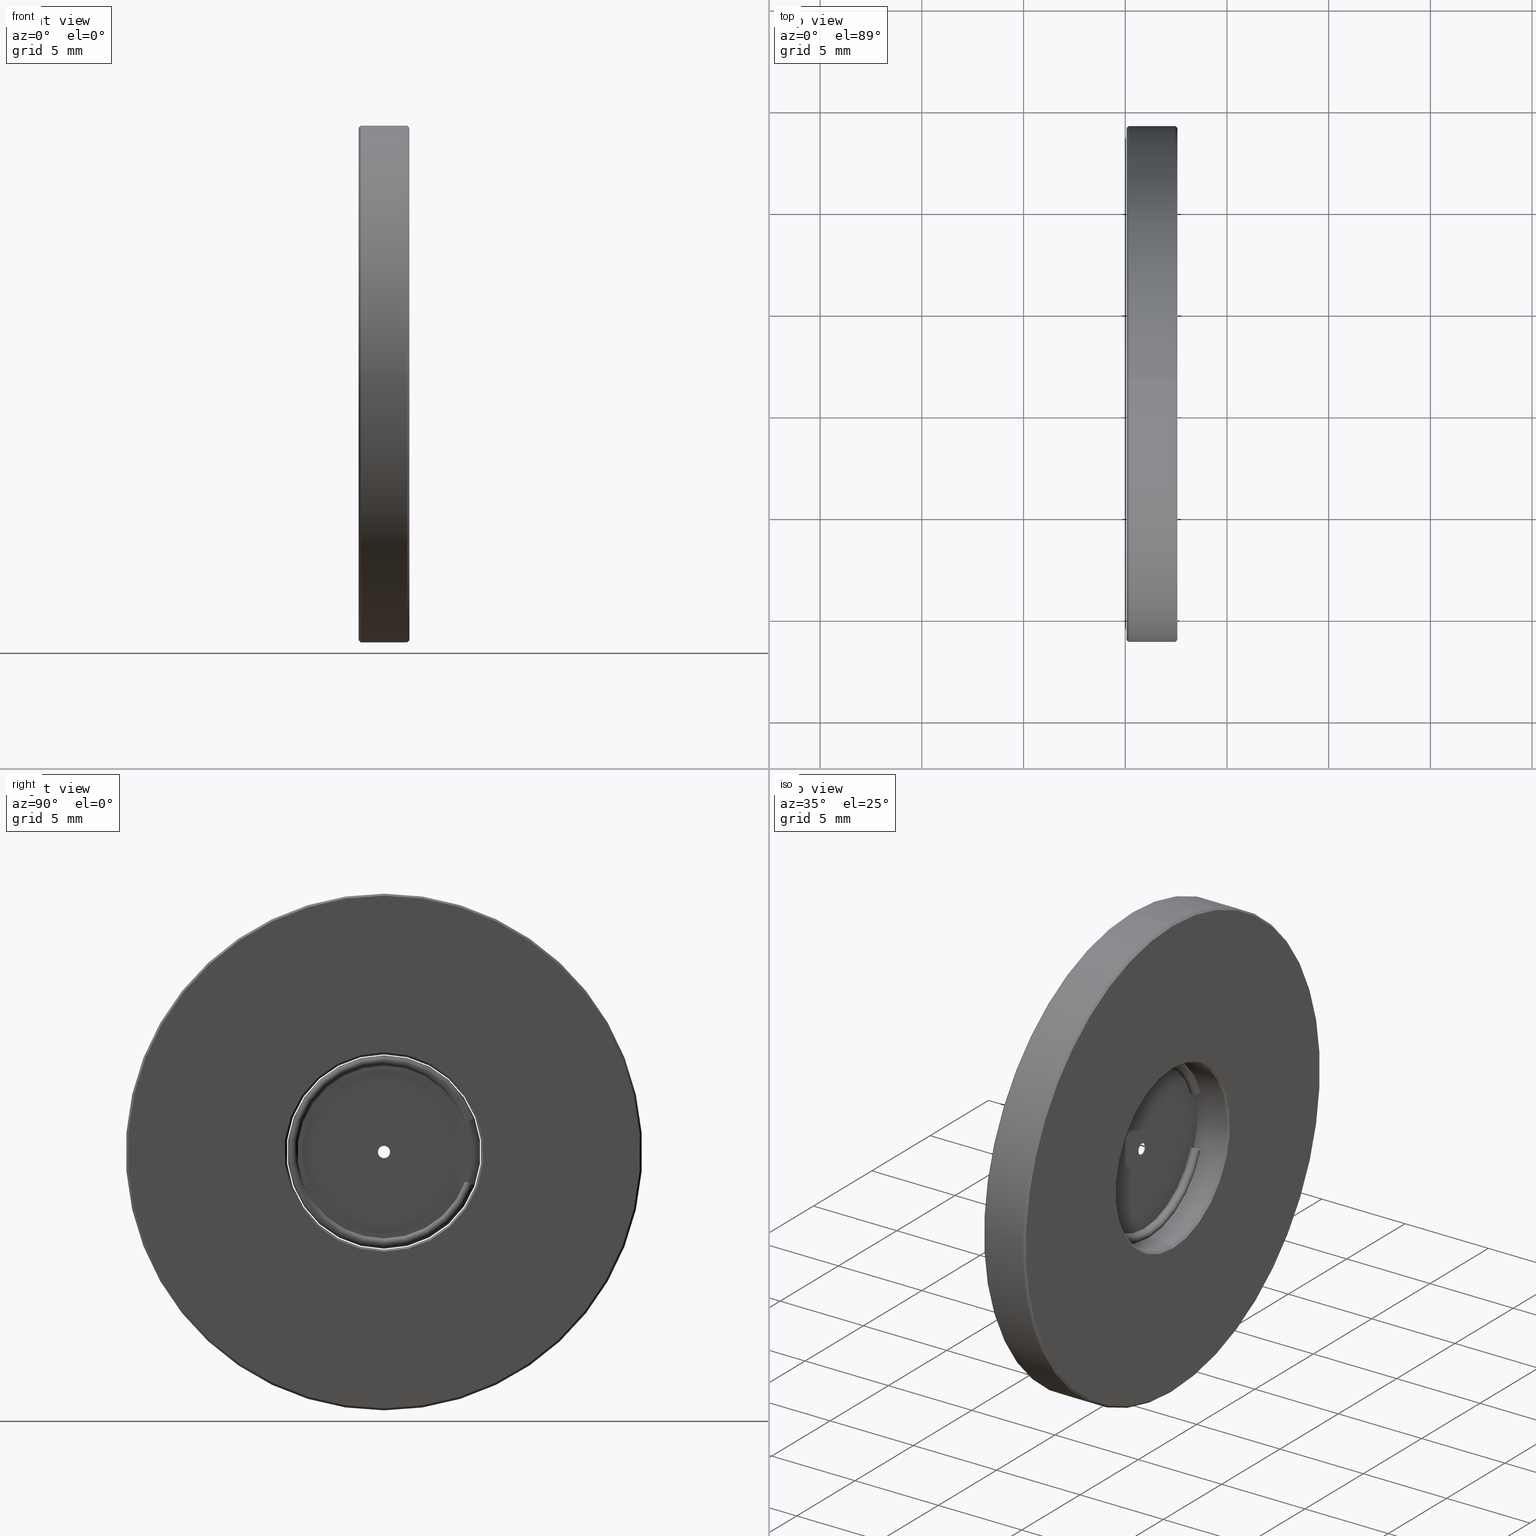
[diagram: canonical four-view strip — front | top / right | iso, engineering-drawing reading convention]
A machine part, canonical four-view strip (front | top / right | iso — engineering-drawing reading convention). The complete STEP part file that produces these views, byte-faithful:
ISO-10303-21;
HEADER;
FILE_DESCRIPTION (( 'STEP AP203' ),
    '1' );
FILE_NAME ('1.5.3.36_ZXO-1.0-600_�������600um��ֱ��25.4��1.0Ӣ�磩.STEP',
    '2021-07-27T01:09:54',
    ( 'China' ),
    ( 'Home' ),
    'SwSTEP 2.0',
    'SolidWorks 2018',
    '' );
FILE_SCHEMA (( 'CONFIG_CONTROL_DESIGN' ));
ENDSEC;

DATA;
#1 = CIRCLE ( 'NONE', #513, 0.2500000000000002220 ) ;
#2 = VERTEX_POINT ( 'NONE', #586 ) ;
#3 = DIRECTION ( 'NONE',  ( 0.0000000000000000000, 0.0000000000000000000, -1.000000000000000000 ) ) ;
#4 = ORIENTED_EDGE ( 'NONE', *, *, #303, .T. ) ;
#5 = FACE_OUTER_BOUND ( 'NONE', #271, .T. ) ;
#6 = LOCAL_TIME ( 9, 9, 54.00000000000000000, #343 ) ;
#7 = FACE_OUTER_BOUND ( 'NONE', #541, .T. ) ;
#8 = DIRECTION ( 'NONE',  ( 0.0000000000000000000, 0.0000000000000000000, -1.000000000000000000 ) ) ;
#9 = DIRECTION ( 'NONE',  ( 1.000000000000000000, -2.997602166487921476E-15, -1.332267629309052594E-15 ) ) ;
#10 = AXIS2_PLACEMENT_3D ( 'NONE', #670, #535, #403 ) ;
#11 = CARTESIAN_POINT ( 'NONE',  ( -4.034863851253234657, 1.436758840788972647, 20.89999999999998437 ) ) ;
#12 = CARTESIAN_POINT ( 'NONE',  ( -2.434863851253203482, 1.436758841085141070, 38.09999999999999432 ) ) ;
#13 = ORIENTED_EDGE ( 'NONE', *, *, #750, .T. ) ;
#14 = EDGE_LOOP ( 'NONE', ( #737, #369 ) ) ;
#15 = DIRECTION ( 'NONE',  ( 0.0000000000000000000, 0.0000000000000000000, 1.000000000000000000 ) ) ;
#16 = DIRECTION ( 'NONE',  ( 1.000000000000000000, 0.0000000000000000000, 0.0000000000000000000 ) ) ;
#17 = PERSON ( 'δָ��', 'δָ��', 'δָ��', ('δָ��'), ('δָ��'), ('δָ��') ) ;
#18 = CC_DESIGN_PERSON_AND_ORGANIZATION_ASSIGNMENT ( #811, #524, ( #721 ) ) ;
#19 = ADVANCED_FACE ( 'NONE', ( #532 ), #782, .T. ) ;
#20 = DIRECTION ( 'NONE',  ( 0.0000000000000000000, 0.0000000000000000000, 1.000000000000000000 ) ) ;
#21 = CONICAL_SURFACE ( 'NONE', #448, 3.800000000000001155, 0.7853981633974439491 ) ;
#22 = CARTESIAN_POINT ( 'NONE',  ( -4.334863851253203393, 1.436758841085141514, 29.10000000000000142 ) ) ;
#23 = EDGE_CURVE ( 'NONE', #518, #185, #139, .T. ) ;
#24 = FACE_OUTER_BOUND ( 'NONE', #14, .T. ) ;
#25 = ORIENTED_EDGE ( 'NONE', *, *, #84, .F. ) ;
#26 = CARTESIAN_POINT ( 'NONE',  ( -4.284863851253205347, 1.436758841085140181, 25.39999999999999858 ) ) ;
#27 = CARTESIAN_POINT ( 'NONE',  ( -18.51131405003491537, 1.436758841085141070, 25.39999999999999858 ) ) ;
#28 = APPROVAL ( #525, 'δָ��' ) ;
#29 = CARTESIAN_POINT ( 'NONE',  ( -4.284863851253205347, 1.436758841085139515, 20.64999999999999858 ) ) ;
#30 = CONICAL_SURFACE ( 'NONE', #788, 4.899999999999997691, 0.7853981633974439491 ) ;
#31 = ORIENTED_EDGE ( 'NONE', *, *, #157, .F. ) ;
#32 = DIRECTION ( 'NONE',  ( 0.0000000000000000000, 0.0000000000000000000, 1.000000000000000000 ) ) ;
#33 = AXIS2_PLACEMENT_3D ( 'NONE', #216, #729, #96 ) ;
#34 = LOCAL_TIME ( 9, 9, 54.00000000000000000, #585 ) ;
#35 = LINE ( 'NONE', #555, #275 ) ;
#36 = AXIS2_PLACEMENT_3D ( 'NONE', #11, #830, #701 ) ;
#37 = CARTESIAN_POINT ( 'NONE',  ( -2.434863851253203482, 1.436758841085141070, 25.39999999999999858 ) ) ;
#38 = CARTESIAN_POINT ( 'NONE',  ( -4.934863851253203926, 1.436758841085141070, 25.39999999999999858 ) ) ;
#39 = FACE_OUTER_BOUND ( 'NONE', #659, .T. ) ;
#40 = EDGE_CURVE ( 'NONE', #576, #367, #466, .T. ) ;
#41 = AXIS2_PLACEMENT_3D ( 'NONE', #694, #304, #565 ) ;
#42 = VERTEX_POINT ( 'NONE', #732 ) ;
#43 = AXIS2_PLACEMENT_3D ( 'NONE', #432, #245, #364 ) ;
#44 = PERSON_AND_ORGANIZATION ( #17, #509 ) ;
#45 = VERTEX_POINT ( 'NONE', #149 ) ;
#46 = CARTESIAN_POINT ( 'NONE',  ( -4.284863851253205347, 1.436758841085140181, 25.39999999999999858 ) ) ;
#47 = VERTEX_POINT ( 'NONE', #29 ) ;
#48 = CIRCLE ( 'NONE', #581, 4.750000000000000888 ) ;
#49 = DIRECTION ( 'NONE',  ( 1.000000000000000000, -2.997602166487921476E-15, -1.332267629309052594E-15 ) ) ;
#50 = DIRECTION ( 'NONE',  ( 1.000000000000000000, 0.0000000000000000000, 0.0000000000000000000 ) ) ;
#51 = ADVANCED_FACE ( 'NONE', ( #267 ), #738, .F. ) ;
#52 = CARTESIAN_POINT ( 'NONE',  ( -4.934863851253203926, 1.436758841085141070, 12.80000000000000071 ) ) ;
#53 = AXIS2_PLACEMENT_3D ( 'NONE', #270, #16, #794 ) ;
#54 = ADVANCED_FACE ( 'NONE', ( #7 ), #74, .F. ) ;
#55 = CARTESIAN_POINT ( 'NONE',  ( -4.834863851253204281, 1.436758841085141070, 25.39999999999999858 ) ) ;
#56 = CIRCLE ( 'NONE', #534, 4.799999999999998934 ) ;
#57 = ORIENTED_EDGE ( 'NONE', *, *, #269, .F. ) ;
#58 = DIRECTION ( 'NONE',  ( 1.000000000000000000, -0.0000000000000000000, -0.0000000000000000000 ) ) ;
#59 = TOROIDAL_SURFACE ( 'NONE', #160, 4.500000000000001776, 0.2499999999999994726 ) ;
#60 = DIRECTION ( 'NONE',  ( 0.0000000000000000000, 0.0000000000000000000, -1.000000000000000000 ) ) ;
#61 = CARTESIAN_POINT ( 'NONE',  ( -4.334863851253204281, 1.436758841085139515, 20.64999999999999858 ) ) ;
#62 = EDGE_LOOP ( 'NONE', ( #444, #156, #789, #326 ) ) ;
#63 = AXIS2_PLACEMENT_3D ( 'NONE', #640, #134, #771 ) ;
#64 = CARTESIAN_POINT ( 'NONE',  ( -4.934863851253203926, 1.436758841085141070, 25.39999999999999858 ) ) ;
#65 = CARTESIAN_POINT ( 'NONE',  ( -2.434863851253203038, 1.436758841085141070, 20.50000000000000000 ) ) ;
#66 = CARTESIAN_POINT ( 'NONE',  ( -4.034863851253245315, 1.436758841381310825, 29.89999999999998437 ) ) ;
#67 = EDGE_CURVE ( 'NONE', #2, #682, #342, .T. ) ;
#68 = AXIS2_PLACEMENT_3D ( 'NONE', #363, #428, #179 ) ;
#69 = ORIENTED_EDGE ( 'NONE', *, *, #170, .F. ) ;
#70 = CIRCLE ( 'NONE', #464, 3.700000000000001954 ) ;
#71 = CARTESIAN_POINT ( 'NONE',  ( -4.334863851253204281, 1.436758841085140181, 25.39999999999999858 ) ) ;
#72 = VERTEX_POINT ( 'NONE', #401 ) ;
#73 = CIRCLE ( 'NONE', #87, 4.899999999999997691 ) ;
#74 = CYLINDRICAL_SURFACE ( 'NONE', #819, 4.799999999999998934 ) ;
#75 = AXIS2_PLACEMENT_3D ( 'NONE', #538, #604, #543 ) ;
#76 = DATE_TIME_ROLE ( 'creation_date' ) ;
#77 = AXIS2_PLACEMENT_3D ( 'NONE', #153, #340, #88 ) ;
#78 = ADVANCED_FACE ( 'NONE', ( #398, #198 ), #734, .T. ) ;
#79 = FACE_BOUND ( 'NONE', #691, .T. ) ;
#80 = ORIENTED_EDGE ( 'NONE', *, *, #426, .F. ) ;
#81 = CALENDAR_DATE ( 2021, 27, 7 ) ;
#82 = APPROVAL_STATUS ( 'not_yet_approved' ) ;
#83 = VERTEX_POINT ( 'NONE', #98 ) ;
#84 = EDGE_CURVE ( 'NONE', #2, #185, #154, .T. ) ;
#85 = CARTESIAN_POINT ( 'NONE',  ( -4.284863851253205347, 1.436758841085140181, 30.14999999999999858 ) ) ;
#86 = MECHANICAL_CONTEXT ( 'NONE', #208, 'mechanical' ) ;
#87 = AXIS2_PLACEMENT_3D ( 'NONE', #323, #142, #574 ) ;
#88 = DIRECTION ( 'NONE',  ( 0.0000000000000000000, 0.0000000000000000000, 1.000000000000000000 ) ) ;
#89 = PERSON_AND_ORGANIZATION_ROLE ( 'creator' ) ;
#90 = CARTESIAN_POINT ( 'NONE',  ( -4.284863851253205347, 1.436758841085140181, 25.39999999999999858 ) ) ;
#91 = AXIS2_PLACEMENT_3D ( 'NONE', #801, #278, #346 ) ;
#92 = VERTEX_POINT ( 'NONE', #607 ) ;
#93 = FACE_OUTER_BOUND ( 'NONE', #358, .T. ) ;
#94 = PERSON_AND_ORGANIZATION ( #17, #509 ) ;
#95 = ORIENTED_EDGE ( 'NONE', *, *, #672, .T. ) ;
#96 = DIRECTION ( 'NONE',  ( 0.0000000000000000000, 0.0000000000000000000, 1.000000000000000000 ) ) ;
#97 = EDGE_CURVE ( 'NONE', #72, #143, #616, .T. ) ;
#98 = CARTESIAN_POINT ( 'NONE',  ( -2.434863851253203482, 1.436758841085141736, 30.29999999999999716 ) ) ;
#99 = VERTEX_POINT ( 'NONE', #740 ) ;
#100 = FACE_OUTER_BOUND ( 'NONE', #400, .T. ) ;
#101 = EDGE_LOOP ( 'NONE', ( #693, #465 ) ) ;
#102 = DIRECTION ( 'NONE',  ( 0.0000000000000000000, 0.0000000000000000000, 1.000000000000000000 ) ) ;
#103 = APPROVAL_DATE_TIME ( #274, #28 ) ;
#104 = FACE_OUTER_BOUND ( 'NONE', #482, .T. ) ;
#105 = ORIENTED_EDGE ( 'NONE', *, *, #741, .T. ) ;
#106 = AXIS2_PLACEMENT_3D ( 'NONE', #55, #380, #514 ) ;
#107 = DIRECTION ( 'NONE',  ( 3.061276722312011406E-15, 1.000000000000000000, 0.0000000000000000000 ) ) ;
#108 = DIRECTION ( 'NONE',  ( -1.054662389422715826E-17, 0.3420201432638126371, -0.9396926208084220855 ) ) ;
#109 = ADVANCED_FACE ( 'NONE', ( #24 ), #796, .F. ) ;
#110 = VERTEX_POINT ( 'NONE', #85 ) ;
#111 = EDGE_CURVE ( 'NONE', #682, #2, #125, .T. ) ;
#112 = VERTEX_POINT ( 'NONE', #802 ) ;
#113 = CARTESIAN_POINT ( 'NONE',  ( -4.034863851253239986, 1.436758841085141514, 25.39999999999998437 ) ) ;
#114 = CC_DESIGN_PERSON_AND_ORGANIZATION_ASSIGNMENT ( #94, #268, ( #733 ) ) ;
#115 = ORIENTED_EDGE ( 'NONE', *, *, #537, .T. ) ;
#116 = AXIS2_PLACEMENT_3D ( 'NONE', #544, #546, #742 ) ;
#117 = CARTESIAN_POINT ( 'NONE',  ( -18.51131405003491537, 1.436758841085141070, 20.60000000000000142 ) ) ;
#118 = VERTEX_POINT ( 'NONE', #284 ) ;
#119 = DIRECTION ( 'NONE',  ( 0.0000000000000000000, 0.0000000000000000000, -1.000000000000000000 ) ) ;
#120 = TOROIDAL_SURFACE ( 'NONE', #63, 4.500000000000001776, 0.2499999999999994726 ) ;
#121 = EDGE_LOOP ( 'NONE', ( #423, #322, #414, #624 ) ) ;
#122 = DIRECTION ( 'NONE',  ( 2.921639538487253472E-15, 1.000000000000000000, 0.0000000000000000000 ) ) ;
#123 = ADVANCED_FACE ( 'NONE', ( #394 ), #332, .F. ) ;
#124 = AXIS2_PLACEMENT_3D ( 'NONE', #90, #470, #609 ) ;
#125 = CIRCLE ( 'NONE', #441, 0.3000000000000016542 ) ;
#126 = DIRECTION ( 'NONE',  ( 0.0000000000000000000, 0.0000000000000000000, -1.000000000000000000 ) ) ;
#127 = CARTESIAN_POINT ( 'NONE',  ( -2.534863851253202682, 1.436758841085141070, 25.39999999999999858 ) ) ;
#128 = DIRECTION ( 'NONE',  ( -1.000000000000000000, -0.0000000000000000000, -0.0000000000000000000 ) ) ;
#129 = ADVANCED_FACE ( 'NONE', ( #104 ), #59, .T. ) ;
#130 = CARTESIAN_POINT ( 'NONE',  ( -2.534863851253199574, 1.436758841085141070, 25.39999999999999858 ) ) ;
#131 = EDGE_CURVE ( 'NONE', #45, #42, #221, .T. ) ;
#132 = AXIS2_PLACEMENT_3D ( 'NONE', #381, #516, #648 ) ;
#133 = LOCAL_TIME ( 9, 9, 54.00000000000000000, #218 ) ;
#134 = DIRECTION ( 'NONE',  ( 1.000000000000000000, -2.997602166487921476E-15, -1.332267629309052594E-15 ) ) ;
#135 = ORIENTED_EDGE ( 'NONE', *, *, #222, .F. ) ;
#136 = EDGE_LOOP ( 'NONE', ( #4, #768 ) ) ;
#137 = DATE_AND_TIME ( #813, #6 ) ;
#138 = CARTESIAN_POINT ( 'NONE',  ( -4.034863851253239986, 1.436758841085141514, 25.39999999999998437 ) ) ;
#139 = CIRCLE ( 'NONE', #77, 0.3000000000000016542 ) ;
#140 = EDGE_CURVE ( 'NONE', #45, #280, #683, .T. ) ;
#141 = DIRECTION ( 'NONE',  ( -1.000000000000000000, -0.0000000000000000000, -0.0000000000000000000 ) ) ;
#142 = DIRECTION ( 'NONE',  ( -1.000000000000000000, -0.0000000000000000000, -0.0000000000000000000 ) ) ;
#143 = VERTEX_POINT ( 'NONE', #749 ) ;
#144 = DATE_TIME_ROLE ( 'classification_date' ) ;
#145 = ORIENTED_EDGE ( 'NONE', *, *, #619, .T. ) ;
#146 = VERTEX_POINT ( 'NONE', #299 ) ;
#147 = CC_DESIGN_APPROVAL ( #283, ( #721 ) ) ;
#148 = PERSON_AND_ORGANIZATION_ROLE ( 'design_supplier' ) ;
#149 = CARTESIAN_POINT ( 'NONE',  ( -2.434863851253203482, 1.436758841085142402, 12.79999999999999716 ) ) ;
#150 = AXIS2_PLACEMENT_3D ( 'NONE', #113, #425, #372 ) ;
#151 = EDGE_LOOP ( 'NONE', ( #276, #552, #646, #349 ) ) ;
#152 = ORIENTED_EDGE ( 'NONE', *, *, #84, .T. ) ;
#153 = CARTESIAN_POINT ( 'NONE',  ( -4.334863851253204281, 1.436758841085140181, 25.39999999999999858 ) ) ;
#154 = LINE ( 'NONE', #467, #564 ) ;
#155 = CIRCLE ( 'NONE', #807, 0.2500000000000002220 ) ;
#156 = ORIENTED_EDGE ( 'NONE', *, *, #745, .T. ) ;
#157 = EDGE_CURVE ( 'NONE', #83, #665, #228, .T. ) ;
#158 = CC_DESIGN_APPROVAL ( #28, ( #761 ) ) ;
#159 = DIRECTION ( 'NONE',  ( 3.061276722312011406E-15, 1.000000000000000000, 0.0000000000000000000 ) ) ;
#160 = AXIS2_PLACEMENT_3D ( 'NONE', #677, #478, #233 ) ;
#161 = ORIENTED_EDGE ( 'NONE', *, *, #386, .F. ) ;
#162 = CONICAL_SURFACE ( 'NONE', #402, 4.899999999999997691, 0.7853981633974439491 ) ;
#163 = ORIENTED_EDGE ( 'NONE', *, *, #770, .F. ) ;
#164 = FACE_OUTER_BOUND ( 'NONE', #520, .T. ) ;
#165 = LINE ( 'NONE', #829, #588 ) ;
#166 = CARTESIAN_POINT ( 'NONE',  ( -4.034863851253234657, 1.436758840788972647, 20.89999999999998437 ) ) ;
#167 = AXIS2_PLACEMENT_3D ( 'NONE', #295, #806, #415 ) ;
#168 = DIRECTION ( 'NONE',  ( -1.000000000000000000, -0.0000000000000000000, -0.0000000000000000000 ) ) ;
#169 = DIRECTION ( 'NONE',  ( -1.000000000000000000, -0.0000000000000000000, -0.0000000000000000000 ) ) ;
#170 = EDGE_CURVE ( 'NONE', #682, #518, #727, .T. ) ;
#171 = CIRCLE ( 'NONE', #210, 12.69999999999999929 ) ;
#172 = ORIENTED_EDGE ( 'NONE', *, *, #657, .T. ) ;
#173 = DIRECTION ( 'NONE',  ( 3.469446951953614189E-15, -0.9396926208084209753, -0.3420201432638159122 ) ) ;
#174 = AXIS2_PLACEMENT_3D ( 'NONE', #138, #9, #583 ) ;
#175 = CYLINDRICAL_SURFACE ( 'NONE', #116, 12.69999999999999574 ) ;
#176 = ORIENTED_EDGE ( 'NONE', *, *, #828, .T. ) ;
#177 = DIRECTION ( 'NONE',  ( -1.000000000000000000, 0.0000000000000000000, 0.0000000000000000000 ) ) ;
#178 = AXIS2_PLACEMENT_3D ( 'NONE', #190, #307, #126 ) ;
#179 = DIRECTION ( 'NONE',  ( 3.599659071901011181E-15, -0.9396926208084229737, -0.3420201432638104166 ) ) ;
#180 = PLANE ( 'NONE',  #690 ) ;
#181 = DIRECTION ( 'NONE',  ( 0.0000000000000000000, 0.0000000000000000000, 1.000000000000000000 ) ) ;
#182 = ORIENTED_EDGE ( 'NONE', *, *, #750, .F. ) ;
#183 = CIRCLE ( 'NONE', #36, 0.2500000000000002220 ) ;
#184 = EDGE_CURVE ( 'NONE', #666, #797, #48, .T. ) ;
#185 = VERTEX_POINT ( 'NONE', #359 ) ;
#186 = DIRECTION ( 'NONE',  ( -0.7071067811865414665, 0.0000000000000000000, 0.7071067811865536790 ) ) ;
#187 = VECTOR ( 'NONE', #587, 1000.000000000000000 ) ;
#188 = CIRCLE ( 'NONE', #608, 4.750000000000000888 ) ;
#189 = CARTESIAN_POINT ( 'NONE',  ( -2.434863851253203482, 1.436758841085141070, 25.39999999999999858 ) ) ;
#190 = CARTESIAN_POINT ( 'NONE',  ( -4.334863851253203393, 1.436758841085141070, 25.39999999999999858 ) ) ;
#191 = ADVANCED_FACE ( 'NONE', ( #805 ), #175, .T. ) ;
#192 = DIRECTION ( 'NONE',  ( 0.7071067811865505703, 0.0000000000000000000, -0.7071067811865444641 ) ) ;
#193 = CARTESIAN_POINT ( 'NONE',  ( -2.434863851253203482, 1.436758841085141070, 20.50000000000000000 ) ) ;
#194 = FACE_OUTER_BOUND ( 'NONE', #151, .T. ) ;
#195 = ORIENTED_EDGE ( 'NONE', *, *, #416, .T. ) ;
#196 = PLANE ( 'NONE',  #387 ) ;
#197 = AXIS2_PLACEMENT_3D ( 'NONE', #722, #141, #15 ) ;
#198 = FACE_OUTER_BOUND ( 'NONE', #584, .T. ) ;
#199 = PERSON_AND_ORGANIZATION ( #17, #509 ) ;
#200 = ORIENTED_EDGE ( 'NONE', *, *, #793, .F. ) ;
#201 = DIRECTION ( 'NONE',  ( 1.000000000000000000, -2.997602166487921476E-15, -1.332267629309052594E-15 ) ) ;
#202 = DIRECTION ( 'NONE',  ( 1.000000000000000000, 0.0000000000000000000, -0.0000000000000000000 ) ) ;
#203 = EDGE_CURVE ( 'NONE', #654, #404, #382, .T. ) ;
#204 = CC_DESIGN_PERSON_AND_ORGANIZATION_ASSIGNMENT ( #595, #89, ( #761 ) ) ;
#205 = VERTEX_POINT ( 'NONE', #224 ) ;
#206 = CONICAL_SURFACE ( 'NONE', #809, 3.800000000000001155, 0.7853981633974439491 ) ;
#207 = ORIENTED_EDGE ( 'NONE', *, *, #257, .F. ) ;
#208 = APPLICATION_CONTEXT ( 'configuration controlled 3d designs of mechanical parts and assemblies' ) ;
#209 = VECTOR ( 'NONE', #475, 1000.000000000000000 ) ;
#210 = AXIS2_PLACEMENT_3D ( 'NONE', #637, #702, #366 ) ;
#211 = EDGE_CURVE ( 'NONE', #239, #634, #213, .T. ) ;
#212 = ORIENTED_EDGE ( 'NONE', *, *, #517, .F. ) ;
#213 = CIRCLE ( 'NONE', #335, 0.2500000000000000000 ) ;
#214 = EDGE_CURVE ( 'NONE', #291, #815, #35, .T. ) ;
#215 = ORIENTED_EDGE ( 'NONE', *, *, #353, .T. ) ;
#216 = CARTESIAN_POINT ( 'NONE',  ( -4.284863851253205347, 1.436758841085140181, 25.39999999999999858 ) ) ;
#217 = AXIS2_PLACEMENT_3D ( 'NONE', #558, #689, #698 ) ;
#218 = COORDINATED_UNIVERSAL_TIME_OFFSET ( 8, 0, .AHEAD. ) ;
#219 = OPEN_SHELL ( 'NONE', ( #51, #329, #704, #191, #508, #579, #241, #568, #436, #591, #491, #19, #631, #78, #430, #54 ) ) ;
#220 = CIRCLE ( 'NONE', #217, 0.2500000000000002220 ) ;
#221 = LINE ( 'NONE', #362, #551 ) ;
#222 = EDGE_CURVE ( 'NONE', #143, #205, #696, .T. ) ;
#223 = DIRECTION ( 'NONE',  ( 0.0000000000000000000, 0.0000000000000000000, -1.000000000000000000 ) ) ;
#224 = CARTESIAN_POINT ( 'NONE',  ( -4.034863851253229328, 5.430452479329598070, 23.94641439060304933 ) ) ;
#225 = CC_DESIGN_PERSON_AND_ORGANIZATION_ASSIGNMENT ( #199, #456, ( #600 ) ) ;
#226 = CIRCLE ( 'NONE', #639, 3.800000000000001155 ) ;
#227 = EDGE_LOOP ( 'NONE', ( #253, #115, #429, #755 ) ) ;
#228 = CIRCLE ( 'NONE', #457, 4.899999999999997691 ) ;
#229 = DIRECTION ( 'NONE',  ( -0.7071067811865414665, 8.659560562355008046E-17, -0.7071067811865536790 ) ) ;
#230 = EDGE_LOOP ( 'NONE', ( #602, #765, #449, #281 ) ) ;
#231 = AXIS2_PLACEMENT_3D ( 'NONE', #816, #49, #497 ) ;
#232 = DIRECTION ( 'NONE',  ( 0.0000000000000000000, -6.581540867855999654E-11, -1.000000000000000000 ) ) ;
#233 = DIRECTION ( 'NONE',  ( -1.332267629506340790E-15, -6.581527172670668233E-11, -1.000000000000000000 ) ) ;
#234 = EDGE_CURVE ( 'NONE', #143, #592, #523, .T. ) ;
#235 = DIRECTION ( 'NONE',  ( 0.0000000000000000000, 0.0000000000000000000, 1.000000000000000000 ) ) ;
#236 = CC_DESIGN_PERSON_AND_ORGANIZATION_ASSIGNMENT ( #44, #148, ( #761 ) ) ;
#237 = TOROIDAL_SURFACE ( 'NONE', #680, 4.500000000000001776, 0.2499999999999994726 ) ;
#238 = DIRECTION ( 'NONE',  ( 0.0000000000000000000, 0.0000000000000000000, -1.000000000000000000 ) ) ;
#239 = VERTEX_POINT ( 'NONE', #686 ) ;
#240 = CARTESIAN_POINT ( 'NONE',  ( -4.034863851253261302, 5.665375634723053722, 26.93909064468709857 ) ) ;
#241 = ADVANCED_FACE ( 'NONE', ( #5 ), #354, .F. ) ;
#242 = DIRECTION ( 'NONE',  ( 0.0000000000000000000, 0.0000000000000000000, -1.000000000000000000 ) ) ;
#243 = AXIS2_PLACEMENT_3D ( 'NONE', #501, #630, #242 ) ;
#244 = DIRECTION ( 'NONE',  ( 0.0000000000000000000, 0.0000000000000000000, 1.000000000000000000 ) ) ;
#245 = DIRECTION ( 'NONE',  ( 1.000000000000000000, -2.997602166487921476E-15, -1.332267629309052594E-15 ) ) ;
#246 = DIRECTION ( 'NONE',  ( -1.000000000000000000, -0.0000000000000000000, -0.0000000000000000000 ) ) ;
#247 = FACE_OUTER_BOUND ( 'NONE', #744, .T. ) ;
#248 = EDGE_CURVE ( 'NONE', #47, #110, #188, .T. ) ;
#249 = ORIENTED_EDGE ( 'NONE', *, *, #473, .T. ) ;
#250 = DIRECTION ( 'NONE',  ( -1.054662389422715826E-17, 0.3420201432638126371, -0.9396926208084220855 ) ) ;
#251 = LOCAL_TIME ( 9, 9, 54.00000000000000000, #433 ) ;
#252 = DIRECTION ( 'NONE',  ( -1.000000000000000000, -0.0000000000000000000, -0.0000000000000000000 ) ) ;
#253 = ORIENTED_EDGE ( 'NONE', *, *, #798, .F. ) ;
#254 = CARTESIAN_POINT ( 'NONE',  ( -4.034863851253239986, 1.436758841085141514, 25.39999999999998437 ) ) ;
#255 = CARTESIAN_POINT ( 'NONE',  ( -4.834863851253201616, 1.436758841085141070, 25.39999999999999858 ) ) ;
#256 = CARTESIAN_POINT ( 'NONE',  ( -4.834863851253201616, 1.436758841085141070, 21.69999999999999574 ) ) ;
#257 = EDGE_CURVE ( 'NONE', #280, #146, #667, .T. ) ;
#258 = AXIS2_PLACEMENT_3D ( 'NONE', #389, #443, #317 ) ;
#259 = DIRECTION ( 'NONE',  ( 1.000000000000000000, -0.0000000000000000000, -0.0000000000000000000 ) ) ;
#260 = CARTESIAN_POINT ( 'NONE',  ( -4.034863851253229328, 5.900298789711298397, 23.77540431890929895 ) ) ;
#261 = ADVANCED_FACE ( 'NONE', ( #454 ), #825, .T. ) ;
#262 = EDGE_LOOP ( 'NONE', ( #309, #95 ) ) ;
#263 = CARTESIAN_POINT ( 'NONE',  ( -2.434863851253203482, 1.436758841085141070, 25.39999999999999858 ) ) ;
#264 = LINE ( 'NONE', #557, #786 ) ;
#265 = ORIENTED_EDGE ( 'NONE', *, *, #776, .F. ) ;
#266 = EDGE_CURVE ( 'NONE', #576, #112, #290, .T. ) ;
#267 = FACE_OUTER_BOUND ( 'NONE', #779, .T. ) ;
#268 = PERSON_AND_ORGANIZATION_ROLE ( 'creator' ) ;
#269 = EDGE_CURVE ( 'NONE', #815, #118, #658, .T. ) ;
#270 = CARTESIAN_POINT ( 'NONE',  ( -4.934863851253203926, 1.436758841085141070, 25.39999999999999858 ) ) ;
#271 = EDGE_LOOP ( 'NONE', ( #791, #311, #800, #80 ) ) ;
#272 = CONICAL_SURFACE ( 'NONE', #106, 12.69999999999999929, 0.7853981633974569387 ) ;
#273 = ORIENTED_EDGE ( 'NONE', *, *, #97, .T. ) ;
#274 = DATE_AND_TIME ( #81, #251 ) ;
#275 = VECTOR ( 'NONE', #810, 1000.000000000000000 ) ;
#276 = ORIENTED_EDGE ( 'NONE', *, *, #131, .F. ) ;
#277 = AXIS2_PLACEMENT_3D ( 'NONE', #438, #772, #8 ) ;
#278 = DIRECTION ( 'NONE',  ( 1.000000000000000000, 0.0000000000000000000, 0.0000000000000000000 ) ) ;
#279 = ORIENTED_EDGE ( 'NONE', *, *, #651, .F. ) ;
#280 = VERTEX_POINT ( 'NONE', #562 ) ;
#281 = ORIENTED_EDGE ( 'NONE', *, *, #835, .F. ) ;
#282 = DIRECTION ( 'NONE',  ( 1.000000000000000000, 0.0000000000000000000, 0.0000000000000000000 ) ) ;
#283 = APPROVAL ( #723, 'δָ��' ) ;
#284 = CARTESIAN_POINT ( 'NONE',  ( -4.334863851253203393, 1.436758841085141070, 21.69999999999999574 ) ) ;
#285 = UNCERTAINTY_MEASURE_WITH_UNIT (LENGTH_MEASURE( 1.000000000000000082E-05 ), #395, 'distance_accuracy_value', 'NONE');
#286 = ORIENTED_EDGE ( 'NONE', *, *, #828, .F. ) ;
#287 = CIRCLE ( 'NONE', #739, 4.750000000000000888 ) ;
#288 = DIRECTION ( 'NONE',  ( 0.0000000000000000000, 0.0000000000000000000, -1.000000000000000000 ) ) ;
#289 = CIRCLE ( 'NONE', #556, 4.750000000000000888 ) ;
#290 = LINE ( 'NONE', #117, #484 ) ;
#291 = VERTEX_POINT ( 'NONE', #621 ) ;
#292 = DIRECTION ( 'NONE',  ( 1.000000000000000000, -2.997602166487921476E-15, -1.332267629309052594E-15 ) ) ;
#293 = EDGE_CURVE ( 'NONE', #654, #338, #165, .T. ) ;
#294 = LOCAL_TIME ( 9, 9, 54.00000000000000000, #622 ) ;
#295 = CARTESIAN_POINT ( 'NONE',  ( -2.434863851253203482, 1.436758841085141070, 25.39999999999999858 ) ) ;
#296 = AXIS2_PLACEMENT_3D ( 'NONE', #71, #325, #783 ) ;
#297 = ORIENTED_EDGE ( 'NONE', *, *, #473, .F. ) ;
#298 = EDGE_LOOP ( 'NONE', ( #821, #105, #455, #297 ) ) ;
#299 = CARTESIAN_POINT ( 'NONE',  ( -2.534863851253199574, 1.436758841085141070, 38.09999999999999432 ) ) ;
#300 = LINE ( 'NONE', #834, #187 ) ;
#301 = EDGE_LOOP ( 'NONE', ( #559, #212, #249, #31 ) ) ;
#302 = PLANE ( 'NONE',  #68 ) ;
#303 = EDGE_CURVE ( 'NONE', #634, #239, #633, .T. ) ;
#304 = DIRECTION ( 'NONE',  ( -1.000000000000000000, 0.0000000000000000000, 0.0000000000000000000 ) ) ;
#305 = CARTESIAN_POINT ( 'NONE',  ( -2.434863851253203482, 1.436758841085141070, 38.00000000000000000 ) ) ;
#306 = EDGE_LOOP ( 'NONE', ( #725, #452, #785, #182 ) ) ;
#307 = DIRECTION ( 'NONE',  ( 1.000000000000000000, 0.0000000000000000000, 0.0000000000000000000 ) ) ;
#308 = ADVANCED_FACE ( 'NONE', ( #450 ), #674, .T. ) ;
#309 = ORIENTED_EDGE ( 'NONE', *, *, #203, .T. ) ;
#310 = DIRECTION ( 'NONE',  ( 1.000000000000000000, 0.0000000000000000000, 0.0000000000000000000 ) ) ;
#311 = ORIENTED_EDGE ( 'NONE', *, *, #214, .T. ) ;
#312 = DIRECTION ( 'NONE',  ( 1.000000000000000000, 0.0000000000000000000, 0.0000000000000000000 ) ) ;
#313 = CARTESIAN_POINT ( 'NONE',  ( -4.334863851253204281, 1.436758841085140181, 30.14999999999999858 ) ) ;
#314 = CC_DESIGN_DATE_AND_TIME_ASSIGNMENT ( #536, #144, ( #721 ) ) ;
#315 = CARTESIAN_POINT ( 'NONE',  ( -4.934863851253203926, 1.436758841085141070, 29.19999999999999929 ) ) ;
#316 = DIRECTION ( 'NONE',  ( 1.000000000000000000, 0.0000000000000000000, 0.0000000000000000000 ) ) ;
#317 = DIRECTION ( 'NONE',  ( 0.0000000000000000000, 0.0000000000000000000, -1.000000000000000000 ) ) ;
#318 = DIRECTION ( 'NONE',  ( 0.7071067811865505703, 8.659560562354895880E-17, 0.7071067811865444641 ) ) ;
#319 = AXIS2_PLACEMENT_3D ( 'NONE', #498, #711, #375 ) ;
#320 = ORIENTED_EDGE ( 'NONE', *, *, #40, .F. ) ;
#321 = DIRECTION ( 'NONE',  ( 1.000000000000000000, 0.0000000000000000000, 0.0000000000000000000 ) ) ;
#322 = ORIENTED_EDGE ( 'NONE', *, *, #234, .F. ) ;
#323 = CARTESIAN_POINT ( 'NONE',  ( -2.434863851253203482, 1.436758841085141070, 25.39999999999999858 ) ) ;
#324 = CC_DESIGN_SECURITY_CLASSIFICATION ( #721, ( #761 ) ) ;
#325 = DIRECTION ( 'NONE',  ( 1.000000000000000000, 0.0000000000000000000, 0.0000000000000000000 ) ) ;
#326 = ORIENTED_EDGE ( 'NONE', *, *, #353, .F. ) ;
#327 = CIRCLE ( 'NONE', #417, 4.750000000000000888 ) ;
#328 = DIRECTION ( 'NONE',  ( 0.0000000000000000000, 6.581540867855999654E-11, 1.000000000000000000 ) ) ;
#329 = ADVANCED_FACE ( 'NONE', ( #715 ), #162, .F. ) ;
#330 = EDGE_LOOP ( 'NONE', ( #706, #145, #279, #594 ) ) ;
#331 = LINE ( 'NONE', #769, #563 ) ;
#332 = CYLINDRICAL_SURFACE ( 'NONE', #124, 0.3000000000000016542 ) ;
#333 = APPLICATION_CONTEXT ( 'configuration controlled 3d designs of mechanical parts and assemblies' ) ;
#334 = ADVANCED_FACE ( 'NONE', ( #93, #613 ), #180, .T. ) ;
#335 = AXIS2_PLACEMENT_3D ( 'NONE', #679, #108, #173 ) ;
#336 = SHAPE_DEFINITION_REPRESENTATION ( #656, #589 ) ;
#337 = FACE_OUTER_BOUND ( 'NONE', #136, .T. ) ;
#338 = VERTEX_POINT ( 'NONE', #370 ) ;
#339 = EDGE_CURVE ( 'NONE', #291, #92, #368, .T. ) ;
#340 = DIRECTION ( 'NONE',  ( 1.000000000000000000, 0.0000000000000000000, 0.0000000000000000000 ) ) ;
#341 = SECURITY_CLASSIFICATION_LEVEL ( 'unclassified' ) ;
#342 = CIRCLE ( 'NONE', #33, 0.3000000000000016542 ) ;
#343 = COORDINATED_UNIVERSAL_TIME_OFFSET ( 8, 0, .AHEAD. ) ;
#344 = AXIS2_PLACEMENT_3D ( 'NONE', #766, #177, #687 ) ;
#345 = OPEN_SHELL ( 'NONE', ( #458, #718, #334, #123 ) ) ;
#346 = DIRECTION ( 'NONE',  ( 0.0000000000000000000, 0.0000000000000000000, -1.000000000000000000 ) ) ;
#347 = CARTESIAN_POINT ( 'NONE',  ( -4.034863851253239986, 1.436758841085141514, 25.39999999999998437 ) ) ;
#348 = AXIS2_PLACEMENT_3D ( 'NONE', #617, #292, #107 ) ;
#349 = ORIENTED_EDGE ( 'NONE', *, *, #610, .F. ) ;
#350 = VECTOR ( 'NONE', #636, 1000.000000000000114 ) ;
#351 = ORIENTED_EDGE ( 'NONE', *, *, #511, .F. ) ;
#352 = PERSON_AND_ORGANIZATION ( #17, #509 ) ;
#353 = EDGE_CURVE ( 'NONE', #634, #72, #405, .T. ) ;
#354 = CYLINDRICAL_SURFACE ( 'NONE', #548, 3.700000000000001954 ) ;
#355 = DIRECTION ( 'NONE',  ( -1.000000000000000000, -0.0000000000000000000, -0.0000000000000000000 ) ) ;
#356 = DIRECTION ( 'NONE',  ( -2.997602166400238009E-15, -1.000000000000000000, 6.581526990068181500E-11 ) ) ;
#357 = FACE_OUTER_BOUND ( 'NONE', #330, .T. ) ;
#358 = EDGE_LOOP ( 'NONE', ( #652, #804 ) ) ;
#359 = CARTESIAN_POINT ( 'NONE',  ( -4.334863851253204281, 1.436758841085140181, 25.69999999999999929 ) ) ;
#360 = ORIENTED_EDGE ( 'NONE', *, *, #157, .T. ) ;
#361 = AXIS2_PLACEMENT_3D ( 'NONE', #510, #708, #774 ) ;
#362 = CARTESIAN_POINT ( 'NONE',  ( -2.434863851253203482, 1.436758841085142402, 12.79999999999999716 ) ) ;
#363 = CARTESIAN_POINT ( 'NONE',  ( -4.034863851253261302, 5.665375634723053722, 26.93909064468709857 ) ) ;
#364 = DIRECTION ( 'NONE',  ( -1.332267629506340790E-15, -6.581527172670668233E-11, -1.000000000000000000 ) ) ;
#365 = PRODUCT_RELATED_PRODUCT_CATEGORY ( 'detail', '', ( #600 ) ) ;
#366 = DIRECTION ( 'NONE',  ( 0.0000000000000000000, 0.0000000000000000000, -1.000000000000000000 ) ) ;
#367 = VERTEX_POINT ( 'NONE', #754 ) ;
#368 = LINE ( 'NONE', #315, #350 ) ;
#369 = ORIENTED_EDGE ( 'NONE', *, *, #731, .F. ) ;
#370 = CARTESIAN_POINT ( 'NONE',  ( -4.834863851253204281, 1.436758841085141070, 12.69999999999999929 ) ) ;
#371 = FACE_BOUND ( 'NONE', #101, .T. ) ;
#372 = DIRECTION ( 'NONE',  ( -1.332267629506340790E-15, -6.581527172670668233E-11, -1.000000000000000000 ) ) ;
#373 = CARTESIAN_POINT ( 'NONE',  ( -4.034863851253226663, 5.430452479520951670, 26.85358560887114621 ) ) ;
#374 = DIRECTION ( 'NONE',  ( -1.332267629506340790E-15, -6.581527172670668233E-11, -1.000000000000000000 ) ) ;
#375 = DIRECTION ( 'NONE',  ( 0.0000000000000000000, 0.0000000000000000000, -1.000000000000000000 ) ) ;
#376 = AXIS2_PLACEMENT_3D ( 'NONE', #420, #489, #119 ) ;
#377 = DIRECTION ( 'NONE',  ( 0.0000000000000000000, 0.0000000000000000000, -1.000000000000000000 ) ) ;
#378 = CYLINDRICAL_SURFACE ( 'NONE', #707, 3.700000000000001954 ) ;
#379 = OPEN_SHELL ( 'NONE', ( #399, #261, #451, #129, #308, #109, #440, #649 ) ) ;
#380 = DIRECTION ( 'NONE',  ( 1.000000000000000000, -0.0000000000000000000, -0.0000000000000000000 ) ) ;
#381 = CARTESIAN_POINT ( 'NONE',  ( -4.034863851253261302, 5.665375634520459336, 23.86090935475617059 ) ) ;
#382 = CIRCLE ( 'NONE', #502, 12.59999999999999787 ) ;
#383 = CARTESIAN_POINT ( 'NONE',  ( -4.034863851253239986, 1.436758841085141514, 25.39999999999998437 ) ) ;
#384 = ORIENTED_EDGE ( 'NONE', *, *, #745, .F. ) ;
#385 = CARTESIAN_POINT ( 'NONE',  ( -4.934863851253203926, 1.436758841085141070, 25.39999999999999858 ) ) ;
#386 = EDGE_CURVE ( 'NONE', #367, #576, #724, .T. ) ;
#387 = AXIS2_PLACEMENT_3D ( 'NONE', #650, #202, #393 ) ;
#388 = CARTESIAN_POINT ( 'NONE',  ( -4.934863851253203926, 1.436758841085141514, 21.59999999999999787 ) ) ;
#389 = CARTESIAN_POINT ( 'NONE',  ( -4.334863851253203393, 1.436758841085141070, 25.39999999999999858 ) ) ;
#390 = AXIS2_PLACEMENT_3D ( 'NONE', #628, #493, #374 ) ;
#391 = VECTOR ( 'NONE', #192, 1000.000000000000000 ) ;
#392 = ORIENTED_EDGE ( 'NONE', *, *, #569, .F. ) ;
#393 = DIRECTION ( 'NONE',  ( 0.0000000000000000000, 0.0000000000000000000, 1.000000000000000000 ) ) ;
#394 = FACE_OUTER_BOUND ( 'NONE', #735, .T. ) ;
#395 =( LENGTH_UNIT ( ) NAMED_UNIT ( * ) SI_UNIT ( .MILLI., .METRE. ) );
#396 = DIRECTION ( 'NONE',  ( -1.000000000000000000, -0.0000000000000000000, -0.0000000000000000000 ) ) ;
#397 = CC_DESIGN_DATE_AND_TIME_ASSIGNMENT ( #522, #76, ( #733 ) ) ;
#398 = FACE_BOUND ( 'NONE', #803, .T. ) ;
#399 = ADVANCED_FACE ( 'NONE', ( #505 ), #560, .T. ) ;
#400 = EDGE_LOOP ( 'NONE', ( #669, #477, #421, #57 ) ) ;
#401 = CARTESIAN_POINT ( 'NONE',  ( -4.034863851253237321, 1.436758841364856876, 29.64999999999998437 ) ) ;
#402 = AXIS2_PLACEMENT_3D ( 'NONE', #697, #823, #757 ) ;
#403 = DIRECTION ( 'NONE',  ( 0.0000000000000000000, 0.0000000000000000000, -1.000000000000000000 ) ) ;
#404 = VERTEX_POINT ( 'NONE', #818 ) ;
#405 = CIRCLE ( 'NONE', #231, 4.250000000000001776 ) ;
#406 = DIRECTION ( 'NONE',  ( -1.000000000000000000, 0.0000000000000000000, -0.0000000000000000000 ) ) ;
#407 = AXIS2_PLACEMENT_3D ( 'NONE', #499, #50, #238 ) ;
#408 = ORIENTED_EDGE ( 'NONE', *, *, #526, .T. ) ;
#409 = ORIENTED_EDGE ( 'NONE', *, *, #784, .F. ) ;
#410 = VECTOR ( 'NONE', #826, 1000.000000000000000 ) ;
#411 = ORIENTED_EDGE ( 'NONE', *, *, #610, .T. ) ;
#412 = PERSON_AND_ORGANIZATION ( #17, #509 ) ;
#413 = AXIS2_PLACEMENT_3D ( 'NONE', #240, #250, #488 ) ;
#414 = ORIENTED_EDGE ( 'NONE', *, *, #222, .T. ) ;
#415 = DIRECTION ( 'NONE',  ( 0.0000000000000000000, 0.0000000000000000000, -1.000000000000000000 ) ) ;
#416 = EDGE_CURVE ( 'NONE', #592, #827, #287, .T. ) ;
#417 = AXIS2_PLACEMENT_3D ( 'NONE', #437, #201, #122 ) ;
#418 = APPROVAL_PERSON_ORGANIZATION ( #795, #283, #661 ) ;
#419 = ORIENTED_EDGE ( 'NONE', *, *, #234, .T. ) ;
#420 = CARTESIAN_POINT ( 'NONE',  ( -4.334863851253203393, 1.436758841085141070, 25.39999999999999858 ) ) ;
#421 = ORIENTED_EDGE ( 'NONE', *, *, #426, .T. ) ;
#422 = CARTESIAN_POINT ( 'NONE',  ( -4.834863851253204281, 1.436758841085142402, 38.09999999999999432 ) ) ;
#423 = ORIENTED_EDGE ( 'NONE', *, *, #416, .F. ) ;
#424 = AXIS2_PLACEMENT_3D ( 'NONE', #347, #459, #159 ) ;
#425 = DIRECTION ( 'NONE',  ( 1.000000000000000000, -2.997602166487921476E-15, -1.332267629309052594E-15 ) ) ;
#426 = EDGE_CURVE ( 'NONE', #710, #118, #264, .T. ) ;
#427 = DIRECTION ( 'NONE',  ( 0.0000000000000000000, 0.0000000000000000000, 1.000000000000000000 ) ) ;
#428 = DIRECTION ( 'NONE',  ( -1.054662389421852547E-17, 0.3420201432638104166, -0.9396926208084229737 ) ) ;
#429 = ORIENTED_EDGE ( 'NONE', *, *, #446, .T. ) ;
#430 = ADVANCED_FACE ( 'NONE', ( #540 ), #30, .F. ) ;
#431 = FACE_OUTER_BOUND ( 'NONE', #121, .T. ) ;
#432 = CARTESIAN_POINT ( 'NONE',  ( -4.034863851253239986, 1.436758841085141514, 25.39999999999998437 ) ) ;
#433 = COORDINATED_UNIVERSAL_TIME_OFFSET ( 8, 0, .AHEAD. ) ;
#434 = EDGE_LOOP ( 'NONE', ( #265, #411, #625, #13 ) ) ;
#435 = DIRECTION ( 'NONE',  ( 0.0000000000000000000, 0.0000000000000000000, -1.000000000000000000 ) ) ;
#436 = ADVANCED_FACE ( 'NONE', ( #39 ), #206, .F. ) ;
#437 = CARTESIAN_POINT ( 'NONE',  ( -4.034863851253239986, 1.436758841085141514, 25.39999999999998437 ) ) ;
#438 = CARTESIAN_POINT ( 'NONE',  ( -4.284863851253205347, 1.436758841085140181, 25.39999999999999858 ) ) ;
#439 = CARTESIAN_POINT ( 'NONE',  ( -4.834863851253204281, 1.436758841085141070, 25.39999999999999858 ) ) ;
#440 = ADVANCED_FACE ( 'NONE', ( #431 ), #120, .T. ) ;
#441 = AXIS2_PLACEMENT_3D ( 'NONE', #26, #282, #32 ) ;
#442 = EDGE_LOOP ( 'NONE', ( #606, #728 ) ) ;
#443 = DIRECTION ( 'NONE',  ( -1.000000000000000000, -0.0000000000000000000, -0.0000000000000000000 ) ) ;
#444 = ORIENTED_EDGE ( 'NONE', *, *, #211, .F. ) ;
#445 = CARTESIAN_POINT ( 'NONE',  ( -2.534863851253202682, 1.436758841085141736, 30.19999999999999929 ) ) ;
#446 = EDGE_CURVE ( 'NONE', #592, #143, #183, .T. ) ;
#447 = CARTESIAN_POINT ( 'NONE',  ( -4.934863851253203926, 1.436758841085141070, 25.39999999999999858 ) ) ;
#448 = AXIS2_PLACEMENT_3D ( 'NONE', #629, #246, #244 ) ;
#449 = ORIENTED_EDGE ( 'NONE', *, *, #651, .T. ) ;
#450 = FACE_OUTER_BOUND ( 'NONE', #506, .T. ) ;
#451 = ADVANCED_FACE ( 'NONE', ( #743 ), #237, .T. ) ;
#452 = ORIENTED_EDGE ( 'NONE', *, *, #203, .F. ) ;
#453 =( NAMED_UNIT ( * ) PLANE_ANGLE_UNIT ( ) SI_UNIT ( $, .RADIAN. ) );
#454 = FACE_OUTER_BOUND ( 'NONE', #227, .T. ) ;
#455 = ORIENTED_EDGE ( 'NONE', *, *, #726, .F. ) ;
#456 = PERSON_AND_ORGANIZATION_ROLE ( 'design_owner' ) ;
#457 = AXIS2_PLACEMENT_3D ( 'NONE', #37, #169, #553 ) ;
#458 = ADVANCED_FACE ( 'NONE', ( #472 ), #572, .F. ) ;
#459 = DIRECTION ( 'NONE',  ( 1.000000000000000000, -2.997602166487921476E-15, -1.332267629309052594E-15 ) ) ;
#460 = DATE_AND_TIME ( #642, #294 ) ;
#461 = EDGE_CURVE ( 'NONE', #92, #495, #226, .T. ) ;
#462 =( NAMED_UNIT ( * ) SI_UNIT ( $, .STERADIAN. ) SOLID_ANGLE_UNIT ( ) );
#463 = ORIENTED_EDGE ( 'NONE', *, *, #770, .T. ) ;
#464 = AXIS2_PLACEMENT_3D ( 'NONE', #255, #355, #377 ) ;
#465 = ORIENTED_EDGE ( 'NONE', *, *, #623, .T. ) ;
#466 = CIRCLE ( 'NONE', #10, 4.799999999999998934 ) ;
#467 = CARTESIAN_POINT ( 'NONE',  ( -4.284863851253205347, 1.436758841085140181, 25.69999999999999929 ) ) ;
#468 = DIRECTION ( 'NONE',  ( 1.000000000000000000, 0.0000000000000000000, 0.0000000000000000000 ) ) ;
#469 = AXIS2_PLACEMENT_3D ( 'NONE', #27, #468, #533 ) ;
#470 = DIRECTION ( 'NONE',  ( -1.000000000000000000, 0.0000000000000000000, -0.0000000000000000000 ) ) ;
#471 = ORIENTED_EDGE ( 'NONE', *, *, #140, .T. ) ;
#472 = FACE_OUTER_BOUND ( 'NONE', #632, .T. ) ;
#473 = EDGE_CURVE ( 'NONE', #112, #665, #494, .T. ) ;
#474 = ORIENTED_EDGE ( 'NONE', *, *, #266, .F. ) ;
#475 = DIRECTION ( 'NONE',  ( -1.000000000000000000, 0.0000000000000000000, -0.0000000000000000000 ) ) ;
#476 = LINE ( 'NONE', #12, #542 ) ;
#477 = ORIENTED_EDGE ( 'NONE', *, *, #511, .T. ) ;
#478 = DIRECTION ( 'NONE',  ( 1.000000000000000000, -2.997602166487921476E-15, -1.332267629309052594E-15 ) ) ;
#479 = DIRECTION ( 'NONE',  ( 1.000000000000000000, -0.0000000000000000000, -0.0000000000000000000 ) ) ;
#480 = CIRCLE ( 'NONE', #243, 4.799999999999998934 ) ;
#481 = ORIENTED_EDGE ( 'NONE', *, *, #537, .F. ) ;
#482 = EDGE_LOOP ( 'NONE', ( #384, #643, #215, #549 ) ) ;
#483 = AXIS2_PLACEMENT_3D ( 'NONE', #166, #356, #232 ) ;
#484 = VECTOR ( 'NONE', #759, 1000.000000000000000 ) ;
#485 = CARTESIAN_POINT ( 'NONE',  ( -4.334863851253204281, 1.436758841085140181, 25.39999999999999858 ) ) ;
#486 = CONICAL_SURFACE ( 'NONE', #344, 12.59999999999999964, 0.7853981633974569387 ) ;
#487 = ORIENTED_EDGE ( 'NONE', *, *, #731, .T. ) ;
#488 = DIRECTION ( 'NONE',  ( 3.469446951953614189E-15, -0.9396926208084209753, -0.3420201432638159122 ) ) ;
#489 = DIRECTION ( 'NONE',  ( -1.000000000000000000, -0.0000000000000000000, -0.0000000000000000000 ) ) ;
#490 = DIRECTION ( 'NONE',  ( 0.0000000000000000000, 0.0000000000000000000, 1.000000000000000000 ) ) ;
#491 = ADVANCED_FACE ( 'NONE', ( #752 ), #272, .T. ) ;
#492 = VERTEX_POINT ( 'NONE', #500 ) ;
#493 = DIRECTION ( 'NONE',  ( 1.000000000000000000, -2.997602166487921476E-15, -1.332267629309052594E-15 ) ) ;
#494 = LINE ( 'NONE', #65, #391 ) ;
#495 = VERTEX_POINT ( 'NONE', #388 ) ;
#496 = CIRCLE ( 'NONE', #174, 4.750000000000000888 ) ;
#497 = DIRECTION ( 'NONE',  ( 3.061276722312011406E-15, 1.000000000000000000, 0.0000000000000000000 ) ) ;
#498 = CARTESIAN_POINT ( 'NONE',  ( -4.834863851253204281, 1.436758841085141070, 25.39999999999999858 ) ) ;
#499 = CARTESIAN_POINT ( 'NONE',  ( -4.934863851253203926, 1.436758841085141070, 25.39999999999999858 ) ) ;
#500 = CARTESIAN_POINT ( 'NONE',  ( -4.834863851253204281, 1.436758841085142402, 38.09999999999999432 ) ) ;
#501 = CARTESIAN_POINT ( 'NONE',  ( -2.534863851253202682, 1.436758841085141070, 25.39999999999999858 ) ) ;
#502 = AXIS2_PLACEMENT_3D ( 'NONE', #611, #168, #288 ) ;
#503 = APPROVAL_DATE_TIME ( #460, #283 ) ;
#504 = CARTESIAN_POINT ( 'NONE',  ( -4.334863851253203393, 1.436758841085141070, 20.60000000000000142 ) ) ;
#505 = FACE_OUTER_BOUND ( 'NONE', #808, .T. ) ;
#506 = EDGE_LOOP ( 'NONE', ( #481, #644, #273, #419 ) ) ;
#507 = DIRECTION ( 'NONE',  ( 2.921639538487253472E-15, 1.000000000000000000, 0.0000000000000000000 ) ) ;
#508 = ADVANCED_FACE ( 'NONE', ( #357 ), #692, .T. ) ;
#509 = ORGANIZATION ( 'δָ��', 'δָ��', '' ) ;
#510 = CARTESIAN_POINT ( 'NONE',  ( -4.834863851253201616, 1.436758841085141070, 25.39999999999999858 ) ) ;
#511 = EDGE_CURVE ( 'NONE', #291, #710, #547, .T. ) ;
#512 = ORIENTED_EDGE ( 'NONE', *, *, #131, .T. ) ;
#513 = AXIS2_PLACEMENT_3D ( 'NONE', #66, #773, #519 ) ;
#514 = DIRECTION ( 'NONE',  ( 0.0000000000000000000, 0.0000000000000000000, -1.000000000000000000 ) ) ;
#515 = DIRECTION ( 'NONE',  ( 0.0000000000000000000, 0.0000000000000000000, -1.000000000000000000 ) ) ;
#516 = DIRECTION ( 'NONE',  ( 2.305737067885818465E-15, -0.3420201433875043051, -0.9396926207634020978 ) ) ;
#517 = EDGE_CURVE ( 'NONE', #112, #762, #56, .T. ) ;
#518 = VERTEX_POINT ( 'NONE', #580 ) ;
#519 = DIRECTION ( 'NONE',  ( 0.0000000000000000000, 6.581540867855999654E-11, 1.000000000000000000 ) ) ;
#520 = EDGE_LOOP ( 'NONE', ( #753, #409 ) ) ;
#521 = SHELL_BASED_SURFACE_MODEL ( 'NONE', ( #219, #345, #379 ) );
#522 = DATE_AND_TIME ( #695, #34 ) ;
#523 = CIRCLE ( 'NONE', #483, 0.2500000000000002220 ) ;
#524 = PERSON_AND_ORGANIZATION_ROLE ( 'classification_officer' ) ;
#525 = APPROVAL_STATUS ( 'not_yet_approved' ) ;
#526 = EDGE_CURVE ( 'NONE', #367, #762, #653, .T. ) ;
#527 = AXIS2_PLACEMENT_3D ( 'NONE', #130, #578, #3 ) ;
#528 = CIRCLE ( 'NONE', #545, 0.3000000000000016542 ) ;
#529 = ORIENTED_EDGE ( 'NONE', *, *, #111, .T. ) ;
#530 = APPLICATION_PROTOCOL_DEFINITION ( 'international standard', 'config_control_design', 1994, #333 ) ;
#531 = VECTOR ( 'NONE', #318, 1000.000000000000000 ) ;
#532 = FACE_OUTER_BOUND ( 'NONE', #434, .T. ) ;
#533 = DIRECTION ( 'NONE',  ( 0.0000000000000000000, 0.0000000000000000000, -1.000000000000000000 ) ) ;
#534 = AXIS2_PLACEMENT_3D ( 'NONE', #127, #259, #641 ) ;
#535 = DIRECTION ( 'NONE',  ( 1.000000000000000000, 0.0000000000000000000, 0.0000000000000000000 ) ) ;
#536 = DATE_AND_TIME ( #713, #133 ) ;
#537 = EDGE_CURVE ( 'NONE', #99, #592, #327, .T. ) ;
#538 = CARTESIAN_POINT ( 'NONE',  ( -4.034863851253261302, 5.665375634520459336, 23.86090935475617059 ) ) ;
#539 = ORIENTED_EDGE ( 'NONE', *, *, #67, .T. ) ;
#540 = FACE_OUTER_BOUND ( 'NONE', #301, .T. ) ;
#541 = EDGE_LOOP ( 'NONE', ( #685, #320, #618, #612 ) ) ;
#542 = VECTOR ( 'NONE', #396, 1000.000000000000000 ) ;
#543 = DIRECTION ( 'NONE',  ( 2.764278068315865563E-15, -0.9396926207634013206, 0.3420201433875065256 ) ) ;
#544 = CARTESIAN_POINT ( 'NONE',  ( -2.434863851253203482, 1.436758841085141070, 25.39999999999999858 ) ) ;
#545 = AXIS2_PLACEMENT_3D ( 'NONE', #758, #567, #181 ) ;
#546 = DIRECTION ( 'NONE',  ( -1.000000000000000000, -0.0000000000000000000, -0.0000000000000000000 ) ) ;
#547 = CIRCLE ( 'NONE', #361, 3.700000000000001954 ) ;
#548 = AXIS2_PLACEMENT_3D ( 'NONE', #38, #479, #550 ) ;
#549 = ORIENTED_EDGE ( 'NONE', *, *, #699, .T. ) ;
#550 = DIRECTION ( 'NONE',  ( 0.0000000000000000000, 0.0000000000000000000, -1.000000000000000000 ) ) ;
#551 = VECTOR ( 'NONE', #229, 1000.000000000000000 ) ;
#552 = ORIENTED_EDGE ( 'NONE', *, *, #554, .F. ) ;
#553 = DIRECTION ( 'NONE',  ( 0.0000000000000000000, 0.0000000000000000000, -1.000000000000000000 ) ) ;
#554 = EDGE_CURVE ( 'NONE', #280, #45, #764, .T. ) ;
#555 = CARTESIAN_POINT ( 'NONE',  ( -4.934863851253203926, 1.436758841085141514, 29.10000000000000142 ) ) ;
#556 = AXIS2_PLACEMENT_3D ( 'NONE', #792, #719, #730 ) ;
#557 = CARTESIAN_POINT ( 'NONE',  ( -4.934863851253203926, 1.436758841085141070, 21.69999999999999574 ) ) ;
#558 = CARTESIAN_POINT ( 'NONE',  ( -4.034863851253261302, 5.665375634520459336, 23.86090935475617059 ) ) ;
#559 = ORIENTED_EDGE ( 'NONE', *, *, #741, .F. ) ;
#560 = TOROIDAL_SURFACE ( 'NONE', #390, 4.500000000000001776, 0.2499999999999994726 ) ;
#561 = ORIENTED_EDGE ( 'NONE', *, *, #140, .F. ) ;
#562 = CARTESIAN_POINT ( 'NONE',  ( -2.434863851253203482, 1.436758841085141070, 38.00000000000000711 ) ) ;
#563 = VECTOR ( 'NONE', #775, 1000.000000000000114 ) ;
#564 = VECTOR ( 'NONE', #406, 1000.000000000000000 ) ;
#565 = DIRECTION ( 'NONE',  ( 0.0000000000000000000, 0.0000000000000000000, -1.000000000000000000 ) ) ;
#566 = DIRECTION ( 'NONE',  ( 1.000000000000000000, -0.0000000000000000000, -0.0000000000000000000 ) ) ;
#567 = DIRECTION ( 'NONE',  ( 1.000000000000000000, 0.0000000000000000000, 0.0000000000000000000 ) ) ;
#568 = ADVANCED_FACE ( 'NONE', ( #100 ), #378, .F. ) ;
#569 = EDGE_CURVE ( 'NONE', #710, #291, #70, .T. ) ;
#570 = CARTESIAN_POINT ( 'NONE',  ( -4.284863851253205347, 1.436758841085140181, 25.39999999999999858 ) ) ;
#571 = DIRECTION ( 'NONE',  ( -1.332267629506340790E-15, -6.581527172670668233E-11, -1.000000000000000000 ) ) ;
#572 = CYLINDRICAL_SURFACE ( 'NONE', #277, 0.3000000000000016542 ) ;
#573 = CARTESIAN_POINT ( 'NONE',  ( -4.934863851253203926, 1.436758841085141070, 25.39999999999999858 ) ) ;
#574 = DIRECTION ( 'NONE',  ( 0.0000000000000000000, 0.0000000000000000000, -1.000000000000000000 ) ) ;
#575 = DIRECTION ( 'NONE',  ( 1.000000000000000000, -2.997602166487921476E-15, -1.332267629309052594E-15 ) ) ;
#576 = VERTEX_POINT ( 'NONE', #504 ) ;
#577 = DIRECTION ( 'NONE',  ( 0.0000000000000000000, 0.0000000000000000000, -1.000000000000000000 ) ) ;
#578 = DIRECTION ( 'NONE',  ( -1.000000000000000000, 0.0000000000000000000, 0.0000000000000000000 ) ) ;
#579 = ADVANCED_FACE ( 'NONE', ( #247 ), #21, .F. ) ;
#580 = CARTESIAN_POINT ( 'NONE',  ( -4.334863851253204281, 1.436758841085140181, 25.09999999999999787 ) ) ;
#581 = AXIS2_PLACEMENT_3D ( 'NONE', #485, #684, #102 ) ;
#582 = CARTESIAN_POINT ( 'NONE',  ( -18.51131405003491537, 1.436758841085141736, 30.19999999999999929 ) ) ;
#583 = DIRECTION ( 'NONE',  ( 2.921639538487253472E-15, 1.000000000000000000, 0.0000000000000000000 ) ) ;
#584 = EDGE_LOOP ( 'NONE', ( #820, #471 ) ) ;
#585 = COORDINATED_UNIVERSAL_TIME_OFFSET ( 8, 0, .AHEAD. ) ;
#586 = CARTESIAN_POINT ( 'NONE',  ( -4.284863851253205347, 1.436758841085140181, 25.69999999999999929 ) ) ;
#587 = DIRECTION ( 'NONE',  ( -1.000000000000000000, -0.0000000000000000000, -0.0000000000000000000 ) ) ;
#588 = VECTOR ( 'NONE', #763, 1000.000000000000000 ) ;
#589 = MANIFOLD_SURFACE_SHAPE_REPRESENTATION ( '1.5.3.36_ZXO-1.0-600_�������600um��ֱ��25.4��1.0Ӣ�磩', ( #521, #817 ), #645 ) ;
#590 = APPLICATION_PROTOCOL_DEFINITION ( 'international standard', 'config_control_design', 1994, #208 ) ;
#591 = ADVANCED_FACE ( 'NONE', ( #79, #736 ), #626, .F. ) ;
#592 = VERTEX_POINT ( 'NONE', #831 ) ;
#593 = CIRCLE ( 'NONE', #41, 12.69999999999999929 ) ;
#594 = ORIENTED_EDGE ( 'NONE', *, *, #293, .F. ) ;
#595 = PERSON_AND_ORGANIZATION ( #17, #509 ) ;
#596 = ORIENTED_EDGE ( 'NONE', *, *, #23, .F. ) ;
#597 = DIRECTION ( 'NONE',  ( 2.997602166400237614E-15, 1.000000000000000000, -6.581539236536173561E-11 ) ) ;
#598 = CARTESIAN_POINT ( 'NONE',  ( -18.51131405003491537, 1.436758841085141070, 25.39999999999999858 ) ) ;
#599 = APPROVAL_ROLE ( '' ) ;
#600 = PRODUCT ( '1.5.3.36_ZXO-1.0-600_�������600um��ֱ��25.4��1.0Ӣ�磩', '1.5.3.36_ZXO-1.0-600_�������600um��ֱ��25.4��1.0Ӣ�磩', '', ( #86 ) ) ;
#601 = EDGE_CURVE ( 'NONE', #205, #827, #220, .T. ) ;
#602 = ORIENTED_EDGE ( 'NONE', *, *, #793, .T. ) ;
#603 = ORIENTED_EDGE ( 'NONE', *, *, #461, .T. ) ;
#604 = DIRECTION ( 'NONE',  ( 2.305737067885825171E-15, -0.3420201433875065256, -0.9396926207634013206 ) ) ;
#605 = CIRCLE ( 'NONE', #620, 12.69999999999999929 ) ;
#606 = ORIENTED_EDGE ( 'NONE', *, *, #111, .F. ) ;
#607 = CARTESIAN_POINT ( 'NONE',  ( -4.934863851253203926, 1.436758841085141070, 29.19999999999999929 ) ) ;
#608 = AXIS2_PLACEMENT_3D ( 'NONE', #46, #310, #235 ) ;
#609 = DIRECTION ( 'NONE',  ( 0.0000000000000000000, 0.0000000000000000000, -1.000000000000000000 ) ) ;
#610 = EDGE_CURVE ( 'NONE', #42, #146, #593, .T. ) ;
#611 = CARTESIAN_POINT ( 'NONE',  ( -4.934863851253203926, 1.436758841085141070, 25.39999999999999858 ) ) ;
#612 = ORIENTED_EDGE ( 'NONE', *, *, #517, .T. ) ;
#613 = FACE_BOUND ( 'NONE', #442, .T. ) ;
#614 = EDGE_LOOP ( 'NONE', ( #561, #512, #200, #207 ) ) ;
#615 = CIRCLE ( 'NONE', #527, 12.69999999999999929 ) ;
#616 = CIRCLE ( 'NONE', #424, 4.250000000000001776 ) ;
#617 = CARTESIAN_POINT ( 'NONE',  ( -4.034863851253239986, 1.436758841085141514, 25.39999999999998437 ) ) ;
#618 = ORIENTED_EDGE ( 'NONE', *, *, #266, .T. ) ;
#619 = EDGE_CURVE ( 'NONE', #404, #492, #681, .T. ) ;
#620 = AXIS2_PLACEMENT_3D ( 'NONE', #439, #638, #703 ) ;
#621 = CARTESIAN_POINT ( 'NONE',  ( -4.834863851253201616, 1.436758841085141514, 29.10000000000000142 ) ) ;
#622 = COORDINATED_UNIVERSAL_TIME_OFFSET ( 8, 0, .AHEAD. ) ;
#623 = EDGE_CURVE ( 'NONE', #185, #518, #528, .T. ) ;
#624 = ORIENTED_EDGE ( 'NONE', *, *, #601, .T. ) ;
#625 = ORIENTED_EDGE ( 'NONE', *, *, #835, .T. ) ;
#626 = PLANE ( 'NONE',  #407 ) ;
#627 = ORIENTED_EDGE ( 'NONE', *, *, #726, .T. ) ;
#628 = CARTESIAN_POINT ( 'NONE',  ( -4.034863851253239986, 1.436758841085141514, 25.39999999999998437 ) ) ;
#629 = CARTESIAN_POINT ( 'NONE',  ( -4.934863851253203926, 1.436758841085141070, 25.39999999999999858 ) ) ;
#630 = DIRECTION ( 'NONE',  ( 1.000000000000000000, -0.0000000000000000000, -0.0000000000000000000 ) ) ;
#631 = ADVANCED_FACE ( 'NONE', ( #194 ), #822, .T. ) ;
#632 = EDGE_LOOP ( 'NONE', ( #529, #152, #596, #69 ) ) ;
#633 = CIRCLE ( 'NONE', #413, 0.2500000000000000000 ) ;
#634 = VERTEX_POINT ( 'NONE', #373 ) ;
#635 = AXIS2_PLACEMENT_3D ( 'NONE', #447, #252, #515 ) ;
#636 = DIRECTION ( 'NONE',  ( -0.7071067811865506814, 0.0000000000000000000, 0.7071067811865443531 ) ) ;
#637 = CARTESIAN_POINT ( 'NONE',  ( -4.834863851253204281, 1.436758841085141070, 25.39999999999999858 ) ) ;
#638 = DIRECTION ( 'NONE',  ( 1.000000000000000000, -0.0000000000000000000, -0.0000000000000000000 ) ) ;
#639 = AXIS2_PLACEMENT_3D ( 'NONE', #385, #316, #577 ) ;
#640 = CARTESIAN_POINT ( 'NONE',  ( -4.034863851253239986, 1.436758841085141514, 25.39999999999998437 ) ) ;
#641 = DIRECTION ( 'NONE',  ( 0.0000000000000000000, 0.0000000000000000000, -1.000000000000000000 ) ) ;
#642 = CALENDAR_DATE ( 2021, 27, 7 ) ;
#643 = ORIENTED_EDGE ( 'NONE', *, *, #303, .F. ) ;
#644 = ORIENTED_EDGE ( 'NONE', *, *, #699, .F. ) ;
#645 =( GEOMETRIC_REPRESENTATION_CONTEXT ( 3 ) GLOBAL_UNCERTAINTY_ASSIGNED_CONTEXT ( ( #285 ) ) GLOBAL_UNIT_ASSIGNED_CONTEXT ( ( #395, #453, #462 ) ) REPRESENTATION_CONTEXT ( 'NONE', 'WORKASPACE' ) );
#646 = ORIENTED_EDGE ( 'NONE', *, *, #257, .T. ) ;
#647 = DIRECTION ( 'NONE',  ( 0.0000000000000000000, 0.0000000000000000000, -1.000000000000000000 ) ) ;
#648 = DIRECTION ( 'NONE',  ( 3.469446951953611033E-15, -0.9396926207634005435, 0.3420201433875083574 ) ) ;
#649 = ADVANCED_FACE ( 'NONE', ( #337 ), #302, .T. ) ;
#650 = CARTESIAN_POINT ( 'NONE',  ( -4.334863851253204281, 1.436758841085140181, 25.39999999999999858 ) ) ;
#651 = EDGE_CURVE ( 'NONE', #338, #492, #171, .T. ) ;
#652 = ORIENTED_EDGE ( 'NONE', *, *, #814, .T. ) ;
#653 = LINE ( 'NONE', #582, #705 ) ;
#654 = VERTEX_POINT ( 'NONE', #52 ) ;
#655 = FACE_OUTER_BOUND ( 'NONE', #614, .T. ) ;
#656 = PRODUCT_DEFINITION_SHAPE ( 'NONE', 'NONE',  #733 ) ;
#657 = EDGE_CURVE ( 'NONE', #762, #112, #480, .T. ) ;
#658 = CIRCLE ( 'NONE', #376, 3.700000000000001954 ) ;
#659 = EDGE_LOOP ( 'NONE', ( #163, #351, #777, #286 ) ) ;
#660 = CARTESIAN_POINT ( 'NONE',  ( 0.0000000000000000000, 0.0000000000000000000, 0.0000000000000000000 ) ) ;
#661 = APPROVAL_ROLE ( '' ) ;
#662 = AXIS2_PLACEMENT_3D ( 'NONE', #263, #312, #60 ) ;
#663 = CIRCLE ( 'NONE', #635, 12.59999999999999787 ) ;
#664 = DIRECTION ( 'NONE',  ( 1.000000000000000000, 0.0000000000000000000, 0.0000000000000000000 ) ) ;
#665 = VERTEX_POINT ( 'NONE', #193 ) ;
#666 = VERTEX_POINT ( 'NONE', #313 ) ;
#667 = LINE ( 'NONE', #305, #717 ) ;
#668 = CIRCLE ( 'NONE', #53, 3.800000000000001155 ) ;
#669 = ORIENTED_EDGE ( 'NONE', *, *, #214, .F. ) ;
#670 = CARTESIAN_POINT ( 'NONE',  ( -4.334863851253203393, 1.436758841085141070, 25.39999999999999858 ) ) ;
#671 = DIRECTION ( 'NONE',  ( 1.000000000000000000, 0.0000000000000000000, 0.0000000000000000000 ) ) ;
#672 = EDGE_CURVE ( 'NONE', #404, #654, #663, .T. ) ;
#673 = ORIENTED_EDGE ( 'NONE', *, *, #623, .F. ) ;
#674 = TOROIDAL_SURFACE ( 'NONE', #150, 4.500000000000001776, 0.2499999999999994726 ) ;
#675 = ORIENTED_EDGE ( 'NONE', *, *, #170, .T. ) ;
#676 = CIRCLE ( 'NONE', #132, 0.2500000000000002220 ) ;
#677 = CARTESIAN_POINT ( 'NONE',  ( -4.034863851253239986, 1.436758841085141514, 25.39999999999998437 ) ) ;
#678 = APPROVAL ( #82, 'δָ��' ) ;
#679 = CARTESIAN_POINT ( 'NONE',  ( -4.034863851253261302, 5.665375634723053722, 26.93909064468709857 ) ) ;
#680 = AXIS2_PLACEMENT_3D ( 'NONE', #254, #781, #571 ) ;
#681 = LINE ( 'NONE', #422, #410 ) ;
#682 = VERTEX_POINT ( 'NONE', #751 ) ;
#683 = CIRCLE ( 'NONE', #167, 12.60000000000000142 ) ;
#684 = DIRECTION ( 'NONE',  ( 1.000000000000000000, 0.0000000000000000000, 0.0000000000000000000 ) ) ;
#685 = ORIENTED_EDGE ( 'NONE', *, *, #526, .F. ) ;
#686 = CARTESIAN_POINT ( 'NONE',  ( -4.034863851253225775, 5.900298789925161103, 27.02459568050305094 ) ) ;
#687 = DIRECTION ( 'NONE',  ( 0.0000000000000000000, 0.0000000000000000000, 1.000000000000000000 ) ) ;
#688 = CARTESIAN_POINT ( 'NONE',  ( -2.434863851253203038, 1.436758841085141070, 25.39999999999999858 ) ) ;
#689 = DIRECTION ( 'NONE',  ( 2.305737067885818465E-15, -0.3420201433875043051, -0.9396926207634020978 ) ) ;
#690 = AXIS2_PLACEMENT_3D ( 'NONE', #570, #700, #427 ) ;
#691 = EDGE_LOOP ( 'NONE', ( #603, #176 ) ) ;
#692 = CONICAL_SURFACE ( 'NONE', #319, 12.69999999999999929, 0.7853981633974569387 ) ;
#693 = ORIENTED_EDGE ( 'NONE', *, *, #23, .T. ) ;
#694 = CARTESIAN_POINT ( 'NONE',  ( -2.534863851253199574, 1.436758841085141070, 25.39999999999999858 ) ) ;
#695 = CALENDAR_DATE ( 2021, 27, 7 ) ;
#696 = CIRCLE ( 'NONE', #348, 4.250000000000001776 ) ;
#697 = CARTESIAN_POINT ( 'NONE',  ( -2.434863851253203038, 1.436758841085141070, 25.39999999999999858 ) ) ;
#698 = DIRECTION ( 'NONE',  ( 3.469446951953611033E-15, -0.9396926207634005435, 0.3420201433875083574 ) ) ;
#699 = EDGE_CURVE ( 'NONE', #72, #99, #1, .T. ) ;
#700 = DIRECTION ( 'NONE',  ( 1.000000000000000000, 0.0000000000000000000, -0.0000000000000000000 ) ) ;
#701 = DIRECTION ( 'NONE',  ( 0.0000000000000000000, -6.581540867855999654E-11, -1.000000000000000000 ) ) ;
#702 = DIRECTION ( 'NONE',  ( 1.000000000000000000, -0.0000000000000000000, -0.0000000000000000000 ) ) ;
#703 = DIRECTION ( 'NONE',  ( 0.0000000000000000000, 0.0000000000000000000, -1.000000000000000000 ) ) ;
#704 = ADVANCED_FACE ( 'NONE', ( #655 ), #486, .T. ) ;
#705 = VECTOR ( 'NONE', #321, 1000.000000000000000 ) ;
#706 = ORIENTED_EDGE ( 'NONE', *, *, #672, .F. ) ;
#707 = AXIS2_PLACEMENT_3D ( 'NONE', #573, #833, #647 ) ;
#708 = DIRECTION ( 'NONE',  ( -1.000000000000000000, -0.0000000000000000000, -0.0000000000000000000 ) ) ;
#709 = CARTESIAN_POINT ( 'NONE',  ( -2.434863851253203038, 1.436758841085141736, 30.29999999999999716 ) ) ;
#710 = VERTEX_POINT ( 'NONE', #256 ) ;
#711 = DIRECTION ( 'NONE',  ( 1.000000000000000000, -0.0000000000000000000, -0.0000000000000000000 ) ) ;
#712 = DESIGN_CONTEXT ( 'detailed design', #333, 'design' ) ;
#713 = CALENDAR_DATE ( 2021, 27, 7 ) ;
#714 = ORIENTED_EDGE ( 'NONE', *, *, #339, .F. ) ;
#715 = FACE_OUTER_BOUND ( 'NONE', #298, .T. ) ;
#716 = APPROVAL_PERSON_ORGANIZATION ( #352, #678, #787 ) ;
#717 = VECTOR ( 'NONE', #186, 1000.000000000000000 ) ;
#718 = ADVANCED_FACE ( 'NONE', ( #164, #371 ), #196, .F. ) ;
#719 = DIRECTION ( 'NONE',  ( 1.000000000000000000, 0.0000000000000000000, 0.0000000000000000000 ) ) ;
#720 = CARTESIAN_POINT ( 'NONE',  ( -4.034863851253245315, 1.436758841381310825, 29.89999999999998437 ) ) ;
#721 = SECURITY_CLASSIFICATION ( '', '', #341 ) ;
#722 = CARTESIAN_POINT ( 'NONE',  ( -2.434863851253203482, 1.436758841085141070, 25.39999999999999858 ) ) ;
#723 = APPROVAL_STATUS ( 'not_yet_approved' ) ;
#724 = CIRCLE ( 'NONE', #178, 4.799999999999998934 ) ;
#725 = ORIENTED_EDGE ( 'NONE', *, *, #619, .F. ) ;
#726 = EDGE_CURVE ( 'NONE', #665, #83, #73, .T. ) ;
#727 = LINE ( 'NONE', #747, #209 ) ;
#728 = ORIENTED_EDGE ( 'NONE', *, *, #67, .F. ) ;
#729 = DIRECTION ( 'NONE',  ( 1.000000000000000000, 0.0000000000000000000, 0.0000000000000000000 ) ) ;
#730 = DIRECTION ( 'NONE',  ( 0.0000000000000000000, 0.0000000000000000000, 1.000000000000000000 ) ) ;
#731 = EDGE_CURVE ( 'NONE', #827, #205, #676, .T. ) ;
#732 = CARTESIAN_POINT ( 'NONE',  ( -2.534863851253199574, 1.436758841085142402, 12.69999999999999929 ) ) ;
#733 = PRODUCT_DEFINITION ( 'δ֪', '', #761, #712 ) ;
#734 = PLANE ( 'NONE',  #91 ) ;
#735 = EDGE_LOOP ( 'NONE', ( #25, #539, #675, #673 ) ) ;
#736 = FACE_OUTER_BOUND ( 'NONE', #262, .T. ) ;
#737 = ORIENTED_EDGE ( 'NONE', *, *, #601, .F. ) ;
#738 = CYLINDRICAL_SURFACE ( 'NONE', #469, 4.799999999999998934 ) ;
#739 = AXIS2_PLACEMENT_3D ( 'NONE', #383, #575, #507 ) ;
#740 = CARTESIAN_POINT ( 'NONE',  ( -4.034863851253234657, 1.436758841397764552, 30.14999999999998437 ) ) ;
#741 = EDGE_CURVE ( 'NONE', #762, #83, #780, .T. ) ;
#742 = DIRECTION ( 'NONE',  ( 0.0000000000000000000, 0.0000000000000000000, 1.000000000000000000 ) ) ;
#743 = FACE_OUTER_BOUND ( 'NONE', #62, .T. ) ;
#744 = EDGE_LOOP ( 'NONE', ( #392, #463, #812, #714 ) ) ;
#745 = EDGE_CURVE ( 'NONE', #239, #99, #496, .T. ) ;
#746 = ORIENTED_EDGE ( 'NONE', *, *, #446, .F. ) ;
#747 = CARTESIAN_POINT ( 'NONE',  ( -4.284863851253205347, 1.436758841085140181, 25.09999999999999787 ) ) ;
#748 = AXIS2_PLACEMENT_3D ( 'NONE', #189, #760, #490 ) ;
#749 = CARTESIAN_POINT ( 'NONE',  ( -4.034863851253239986, 1.436758840805426596, 21.14999999999998437 ) ) ;
#750 = EDGE_CURVE ( 'NONE', #492, #338, #605, .T. ) ;
#751 = CARTESIAN_POINT ( 'NONE',  ( -4.284863851253205347, 1.436758841085140181, 25.09999999999999787 ) ) ;
#752 = FACE_OUTER_BOUND ( 'NONE', #306, .T. ) ;
#753 = ORIENTED_EDGE ( 'NONE', *, *, #184, .F. ) ;
#754 = CARTESIAN_POINT ( 'NONE',  ( -4.334863851253203393, 1.436758841085141736, 30.19999999999999929 ) ) ;
#755 = ORIENTED_EDGE ( 'NONE', *, *, #97, .F. ) ;
#756 = EDGE_CURVE ( 'NONE', #118, #815, #790, .T. ) ;
#757 = DIRECTION ( 'NONE',  ( 0.0000000000000000000, 0.0000000000000000000, -1.000000000000000000 ) ) ;
#758 = CARTESIAN_POINT ( 'NONE',  ( -4.334863851253204281, 1.436758841085140181, 25.39999999999999858 ) ) ;
#759 = DIRECTION ( 'NONE',  ( 1.000000000000000000, 0.0000000000000000000, 0.0000000000000000000 ) ) ;
#760 = DIRECTION ( 'NONE',  ( -1.000000000000000000, 0.0000000000000000000, 0.0000000000000000000 ) ) ;
#761 = PRODUCT_DEFINITION_FORMATION_WITH_SPECIFIED_SOURCE ( '�κ�', '', #600, .NOT_KNOWN. ) ;
#762 = VERTEX_POINT ( 'NONE', #445 ) ;
#763 = DIRECTION ( 'NONE',  ( 0.7071067811865414665, 0.0000000000000000000, -0.7071067811865536790 ) ) ;
#764 = CIRCLE ( 'NONE', #662, 12.60000000000000142 ) ;
#765 = ORIENTED_EDGE ( 'NONE', *, *, #776, .T. ) ;
#766 = CARTESIAN_POINT ( 'NONE',  ( -2.434863851253203482, 1.436758841085141070, 25.39999999999999858 ) ) ;
#767 = APPROVAL_PERSON_ORGANIZATION ( #412, #28, #599 ) ;
#768 = ORIENTED_EDGE ( 'NONE', *, *, #211, .T. ) ;
#769 = CARTESIAN_POINT ( 'NONE',  ( -4.934863851253203926, 1.436758841085141514, 21.59999999999999787 ) ) ;
#770 = EDGE_CURVE ( 'NONE', #710, #495, #331, .T. ) ;
#771 = DIRECTION ( 'NONE',  ( -1.332267629506340790E-15, -6.581527172670668233E-11, -1.000000000000000000 ) ) ;
#772 = DIRECTION ( 'NONE',  ( -1.000000000000000000, 0.0000000000000000000, -0.0000000000000000000 ) ) ;
#773 = DIRECTION ( 'NONE',  ( 2.997602166400237614E-15, 1.000000000000000000, -6.581539236536173561E-11 ) ) ;
#774 = DIRECTION ( 'NONE',  ( 0.0000000000000000000, 0.0000000000000000000, -1.000000000000000000 ) ) ;
#775 = DIRECTION ( 'NONE',  ( -0.7071067811865506814, 8.659560562354895880E-17, -0.7071067811865443531 ) ) ;
#776 = EDGE_CURVE ( 'NONE', #42, #338, #300, .T. ) ;
#777 = ORIENTED_EDGE ( 'NONE', *, *, #339, .T. ) ;
#778 = CC_DESIGN_APPROVAL ( #678, ( #733 ) ) ;
#779 = EDGE_LOOP ( 'NONE', ( #161, #408, #172, #474 ) ) ;
#780 = LINE ( 'NONE', #709, #531 ) ;
#781 = DIRECTION ( 'NONE',  ( 1.000000000000000000, -2.997602166487921476E-15, -1.332267629309052594E-15 ) ) ;
#782 = CYLINDRICAL_SURFACE ( 'NONE', #197, 12.69999999999999574 ) ;
#783 = DIRECTION ( 'NONE',  ( 0.0000000000000000000, 0.0000000000000000000, 1.000000000000000000 ) ) ;
#784 = EDGE_CURVE ( 'NONE', #797, #666, #824, .T. ) ;
#785 = ORIENTED_EDGE ( 'NONE', *, *, #293, .T. ) ;
#786 = VECTOR ( 'NONE', #566, 1000.000000000000000 ) ;
#787 = APPROVAL_ROLE ( '' ) ;
#788 = AXIS2_PLACEMENT_3D ( 'NONE', #688, #58, #435 ) ;
#789 = ORIENTED_EDGE ( 'NONE', *, *, #798, .T. ) ;
#790 = CIRCLE ( 'NONE', #258, 3.700000000000001954 ) ;
#791 = ORIENTED_EDGE ( 'NONE', *, *, #569, .T. ) ;
#792 = CARTESIAN_POINT ( 'NONE',  ( -4.284863851253205347, 1.436758841085140181, 25.39999999999999858 ) ) ;
#793 = EDGE_CURVE ( 'NONE', #146, #42, #615, .T. ) ;
#794 = DIRECTION ( 'NONE',  ( 0.0000000000000000000, 0.0000000000000000000, -1.000000000000000000 ) ) ;
#795 = PERSON_AND_ORGANIZATION ( #17, #509 ) ;
#796 = PLANE ( 'NONE',  #75 ) ;
#797 = VERTEX_POINT ( 'NONE', #61 ) ;
#798 = EDGE_CURVE ( 'NONE', #99, #72, #155, .T. ) ;
#799 = APPROVAL_DATE_TIME ( #137, #678 ) ;
#800 = ORIENTED_EDGE ( 'NONE', *, *, #756, .F. ) ;
#801 = CARTESIAN_POINT ( 'NONE',  ( -2.434863851253203482, 1.436758841085141070, 25.39999999999999858 ) ) ;
#802 = CARTESIAN_POINT ( 'NONE',  ( -2.534863851253202682, 1.436758841085141070, 20.60000000000000142 ) ) ;
#803 = EDGE_LOOP ( 'NONE', ( #627, #360 ) ) ;
#804 = ORIENTED_EDGE ( 'NONE', *, *, #248, .T. ) ;
#805 = FACE_OUTER_BOUND ( 'NONE', #230, .T. ) ;
#806 = DIRECTION ( 'NONE',  ( 1.000000000000000000, 0.0000000000000000000, 0.0000000000000000000 ) ) ;
#807 = AXIS2_PLACEMENT_3D ( 'NONE', #720, #597, #328 ) ;
#808 = EDGE_LOOP ( 'NONE', ( #746, #195, #487, #135 ) ) ;
#809 = AXIS2_PLACEMENT_3D ( 'NONE', #64, #128, #832 ) ;
#810 = DIRECTION ( 'NONE',  ( 1.000000000000000000, -0.0000000000000000000, -0.0000000000000000000 ) ) ;
#811 = PERSON_AND_ORGANIZATION ( #17, #509 ) ;
#812 = ORIENTED_EDGE ( 'NONE', *, *, #461, .F. ) ;
#813 = CALENDAR_DATE ( 2021, 27, 7 ) ;
#814 = EDGE_CURVE ( 'NONE', #110, #47, #289, .T. ) ;
#815 = VERTEX_POINT ( 'NONE', #22 ) ;
#816 = CARTESIAN_POINT ( 'NONE',  ( -4.034863851253239986, 1.436758841085141514, 25.39999999999998437 ) ) ;
#817 = AXIS2_PLACEMENT_3D ( 'NONE', #660, #20, #664 ) ;
#818 = CARTESIAN_POINT ( 'NONE',  ( -4.934863851253203926, 1.436758841085142402, 38.00000000000000000 ) ) ;
#819 = AXIS2_PLACEMENT_3D ( 'NONE', #598, #671, #223 ) ;
#820 = ORIENTED_EDGE ( 'NONE', *, *, #554, .T. ) ;
#821 = ORIENTED_EDGE ( 'NONE', *, *, #657, .F. ) ;
#822 = CONICAL_SURFACE ( 'NONE', #748, 12.59999999999999964, 0.7853981633974569387 ) ;
#823 = DIRECTION ( 'NONE',  ( 1.000000000000000000, -0.0000000000000000000, -0.0000000000000000000 ) ) ;
#824 = CIRCLE ( 'NONE', #296, 4.750000000000000888 ) ;
#825 = TOROIDAL_SURFACE ( 'NONE', #43, 4.500000000000001776, 0.2499999999999994726 ) ;
#826 = DIRECTION ( 'NONE',  ( 0.7071067811865414665, 8.659560562355009279E-17, 0.7071067811865536790 ) ) ;
#827 = VERTEX_POINT ( 'NONE', #260 ) ;
#828 = EDGE_CURVE ( 'NONE', #495, #92, #668, .T. ) ;
#829 = CARTESIAN_POINT ( 'NONE',  ( -4.834863851253204281, 1.436758841085141070, 12.69999999999999929 ) ) ;
#830 = DIRECTION ( 'NONE',  ( -2.997602166400238009E-15, -1.000000000000000000, 6.581526990068181500E-11 ) ) ;
#831 = CARTESIAN_POINT ( 'NONE',  ( -4.034863851253246203, 1.436758840772518919, 20.64999999999998437 ) ) ;
#832 = DIRECTION ( 'NONE',  ( 0.0000000000000000000, 0.0000000000000000000, 1.000000000000000000 ) ) ;
#833 = DIRECTION ( 'NONE',  ( 1.000000000000000000, -0.0000000000000000000, -0.0000000000000000000 ) ) ;
#834 = CARTESIAN_POINT ( 'NONE',  ( -2.434863851253203482, 1.436758841085142402, 12.69999999999999929 ) ) ;
#835 = EDGE_CURVE ( 'NONE', #146, #492, #476, .T. ) ;
ENDSEC;
END-ISO-10303-21;
